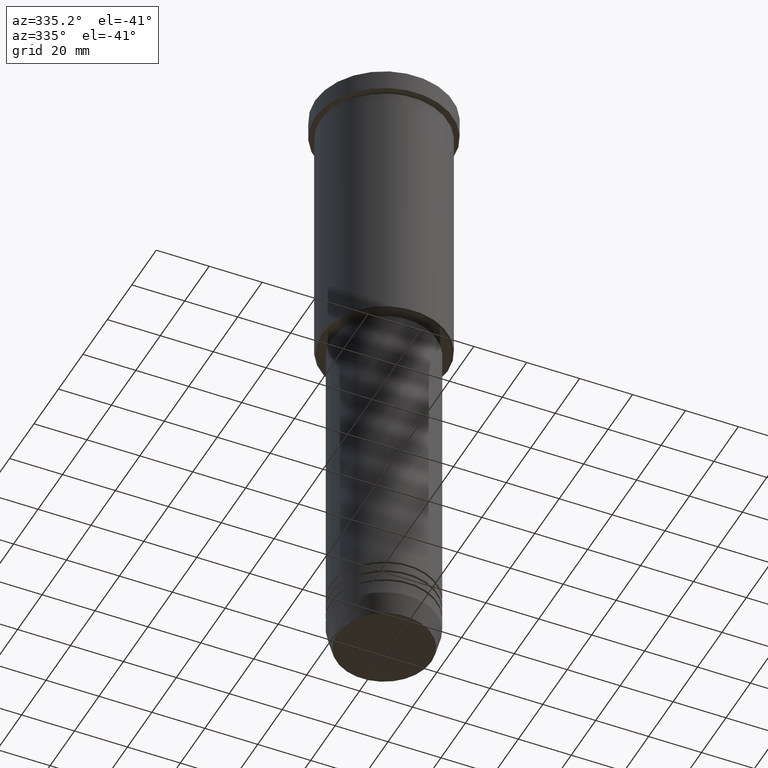
[diagram: clean part render]
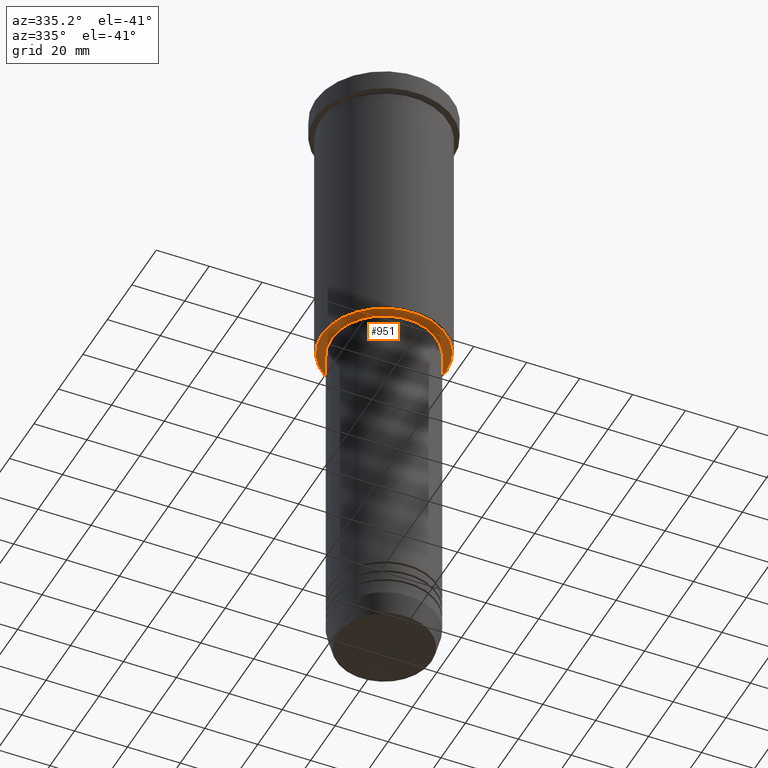
[diagram: same view with one face highlighted and labeled with its STEP entity id]
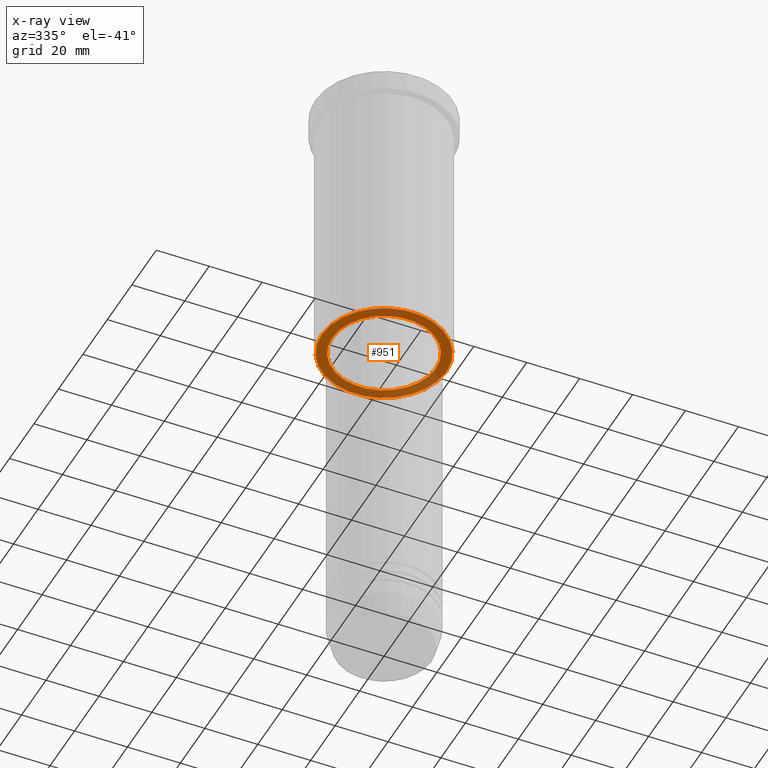
[diagram: x-ray of the same camera — body ghosted, the highlighted face saturated]
A machine part, auxiliary view. The second image highlights one B-rep face of the part: STEP entity #951.
The next image is the same camera in x-ray: the body ghosted, the highlighted face saturated — about 32% of this face is hidden behind the body in this view.
In plain terms, the highlighted planar face has unit normal (0, 0, -1).
Its self-contained STEP definition (entity closure, byte-faithful):
#25 = ORIENTED_EDGE ( 'NONE', *, *, #714, .T. ) ;
#37 = VERTEX_POINT ( 'NONE', #773 ) ;
#44 = VERTEX_POINT ( 'NONE', #145 ) ;
#78 = AXIS2_PLACEMENT_3D ( 'NONE', #1149, #690, #1059 ) ;
#118 = DIRECTION ( 'NONE',  ( 1.000000000000000000, 0.000000000000000000, 0.000000000000000000 ) ) ;
#142 = CARTESIAN_POINT ( 'NONE',  ( 19.50000000000000355, 0.000000000000000000, -105.9999999999999858 ) ) ;
#145 = CARTESIAN_POINT ( 'NONE',  ( -23.50000000000004619, 2.908536147974966868E-15, -105.9999999999999858 ) ) ;
#157 = AXIS2_PLACEMENT_3D ( 'NONE', #984, #533, #625 ) ;
#161 = AXIS2_PLACEMENT_3D ( 'NONE', #876, #1066, #794 ) ;
#183 = DIRECTION ( 'NONE',  ( -0.000000000000000000, -0.000000000000000000, 1.000000000000000000 ) ) ;
#187 = EDGE_CURVE ( 'NONE', #461, #626, #280, .T. ) ;
#280 = CIRCLE ( 'NONE', #840, 19.50000000000000355 ) ;
#311 = EDGE_LOOP ( 'NONE', ( #589, #996 ) ) ;
#315 = AXIS2_PLACEMENT_3D ( 'NONE', #1110, #928, #558 ) ;
#461 = VERTEX_POINT ( 'NONE', #142 ) ;
#506 = CIRCLE ( 'NONE', #157, 19.50000000000000355 ) ;
#508 = EDGE_LOOP ( 'NONE', ( #25, #1178 ) ) ;
#533 = DIRECTION ( 'NONE',  ( -0.000000000000000000, -0.000000000000000000, 1.000000000000000000 ) ) ;
#537 = CARTESIAN_POINT ( 'NONE',  ( -19.50000000000000355, 2.388061258337339333E-15, -105.9999999999999858 ) ) ;
#550 = CARTESIAN_POINT ( 'NONE',  ( 0.000000000000000000, 0.000000000000000000, -105.9999999999999858 ) ) ;
#558 = DIRECTION ( 'NONE',  ( -1.000000000000000000, 0.000000000000000000, -0.000000000000000000 ) ) ;
#589 = ORIENTED_EDGE ( 'NONE', *, *, #187, .T. ) ;
#625 = DIRECTION ( 'NONE',  ( 1.000000000000000000, 0.000000000000000000, 0.000000000000000000 ) ) ;
#626 = VERTEX_POINT ( 'NONE', #537 ) ;
#673 = CIRCLE ( 'NONE', #161, 23.50000000000004619 ) ;
#690 = DIRECTION ( 'NONE',  ( 0.000000000000000000, 0.000000000000000000, -1.000000000000000000 ) ) ;
#714 = EDGE_CURVE ( 'NONE', #37, #44, #673, .T. ) ;
#721 = FACE_OUTER_BOUND ( 'NONE', #508, .T. ) ;
#773 = CARTESIAN_POINT ( 'NONE',  ( 23.50000000000004619, 0.000000000000000000, -105.9999999999999858 ) ) ;
#794 = DIRECTION ( 'NONE',  ( -1.000000000000000000, 0.000000000000000000, 0.000000000000000000 ) ) ;
#840 = AXIS2_PLACEMENT_3D ( 'NONE', #550, #183, #118 ) ;
#860 = EDGE_CURVE ( 'NONE', #44, #37, #1133, .T. ) ;
#876 = CARTESIAN_POINT ( 'NONE',  ( 0.000000000000000000, 0.000000000000000000, -105.9999999999999858 ) ) ;
#928 = DIRECTION ( 'NONE',  ( 0.000000000000000000, 0.000000000000000000, -1.000000000000000000 ) ) ;
#951 = ADVANCED_FACE ( 'NONE', ( #721, #1091 ), #1006, .T. ) ;
#984 = CARTESIAN_POINT ( 'NONE',  ( 0.000000000000000000, 0.000000000000000000, -105.9999999999999858 ) ) ;
#996 = ORIENTED_EDGE ( 'NONE', *, *, #1068, .T. ) ;
#1006 = PLANE ( 'NONE',  #315 ) ;
#1059 = DIRECTION ( 'NONE',  ( -1.000000000000000000, 0.000000000000000000, 0.000000000000000000 ) ) ;
#1066 = DIRECTION ( 'NONE',  ( 0.000000000000000000, 0.000000000000000000, -1.000000000000000000 ) ) ;
#1068 = EDGE_CURVE ( 'NONE', #626, #461, #506, .T. ) ;
#1091 = FACE_BOUND ( 'NONE', #311, .T. ) ;
#1110 = CARTESIAN_POINT ( 'NONE',  ( 0.000000000000000000, 24.00000000000000000, -105.9999999999999858 ) ) ;
#1133 = CIRCLE ( 'NONE', #78, 23.50000000000004619 ) ;
#1149 = CARTESIAN_POINT ( 'NONE',  ( 0.000000000000000000, 0.000000000000000000, -105.9999999999999858 ) ) ;
#1178 = ORIENTED_EDGE ( 'NONE', *, *, #860, .T. ) ;